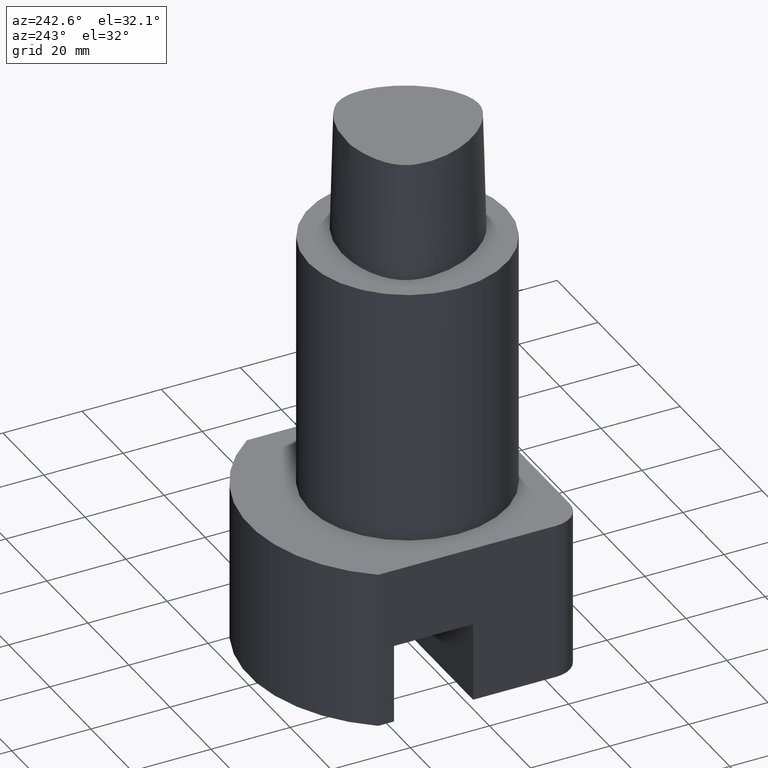
[diagram: clean part render]
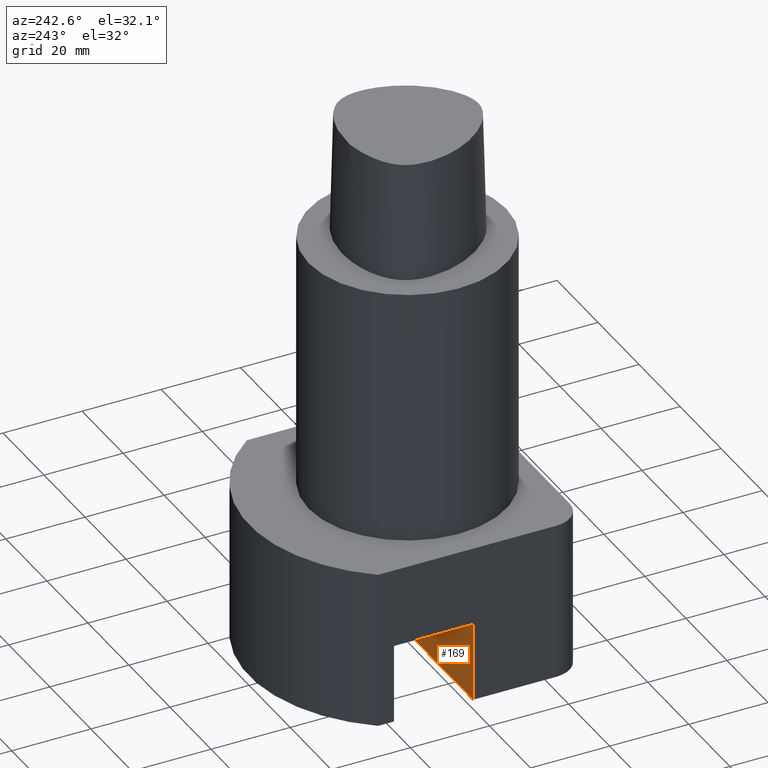
[diagram: same view with one face highlighted and labeled with its STEP entity id]
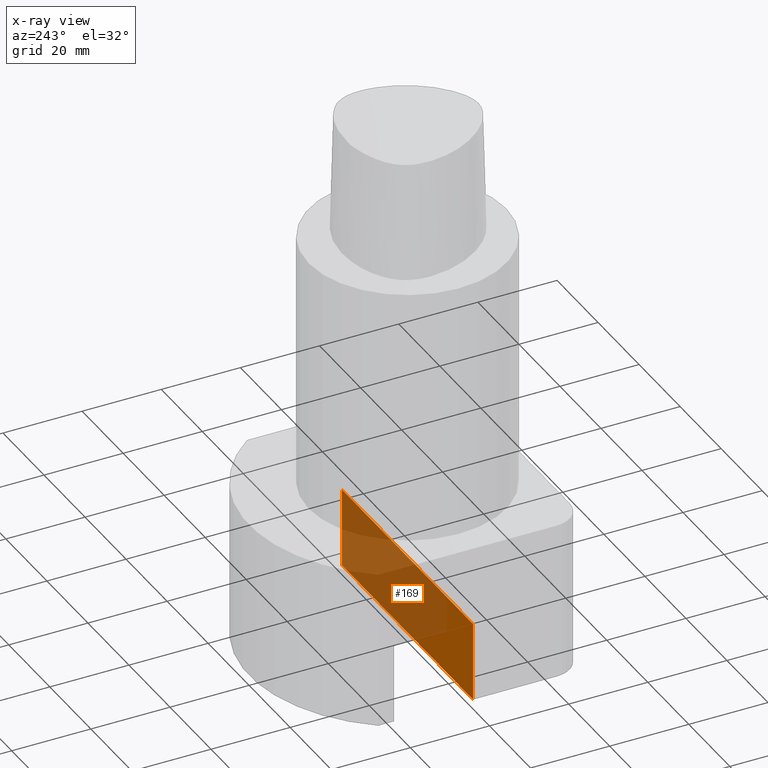
[diagram: x-ray of the same camera — body ghosted, the highlighted face saturated]
A machine part, auxiliary view. The second image highlights one B-rep face of the part: STEP entity #169.
The next image is the same camera in x-ray: the body ghosted, the highlighted face saturated — about 73% of this face is hidden behind the body in this view.
In plain terms, the highlighted planar face has unit normal (-0, -1, 0).
Its self-contained STEP definition (entity closure, byte-faithful):
#107=EDGE_CURVE('240[2]',#217,#261,#262,.T.);
#111=EDGE_CURVE('240[2]',#261,#268,#269,.T.);
#126=EDGE_CURVE('240[2]',#278,#217,#289,.T.);
#169=ADVANCED_FACE('240[2]',(#343),#344,.F.);
#188=EDGE_CURVE('240[2]',#268,#278,#367,.T.);
#217=VERTEX_POINT('',#389);
#261=VERTEX_POINT('',#543);
#262=LINE('',#544,#545);
#268=VERTEX_POINT('',#554);
#269=LINE('',#555,#556);
#278=VERTEX_POINT('',#569);
#289=LINE('',#588,#589);
#343=FACE_OUTER_BOUND('',#716,.T.);
#344=PLANE('',#717);
#367=LINE('',#1136,#1137);
#389=CARTESIAN_POINT('',(32.0,-1.23077003314309E-014,-105.0));
#543=CARTESIAN_POINT('',(32.0,-1.10830535322835E-014,-85.0));
#544=CARTESIAN_POINT('',(32.0,-1.4236519040088E-014,-136.5));
#545=VECTOR('',#1201,1.0);
#554=CARTESIAN_POINT('',(-32.0,6.73555739531043E-016,-85.0));
#555=CARTESIAN_POINT('',(32.0,-1.10830535322835E-014,-85.0));
#556=VECTOR('',#1203,1.0);
#569=CARTESIAN_POINT('',(-32.0,-5.51091059616309E-016,-105.0));
#588=CARTESIAN_POINT('',(14.9748737341529,-9.18023537344853E-015,-105.0));
#589=VECTOR('',#1217,1.0);
#716=EDGE_LOOP('',(#1281,#1282,#1283,#1284));
#717=AXIS2_PLACEMENT_3D('',#1285,#1286,#1287);
#1136=CARTESIAN_POINT('',(-32.0,-2.47990976827339E-015,-136.5));
#1137=VECTOR('',#1316,1.0);
#1201=DIRECTION('',(-1.22464679914735E-016,6.12323399573677E-017,1.0));
#1203=DIRECTION('',(-1.0,1.83697019872103E-016,-1.22464679914735E-016));
#1217=DIRECTION('',(1.0,-1.83697019872103E-016,1.22464679914735E-016));
#1281=ORIENTED_EDGE('',*,*,#126,.F.);
#1282=ORIENTED_EDGE('',*,*,#188,.F.);
#1283=ORIENTED_EDGE('',*,*,#111,.F.);
#1284=ORIENTED_EDGE('',*,*,#107,.F.);
#1285=CARTESIAN_POINT('',(1.7021352546875E-014,-1.02870331128378E-014,-168.0));
#1286=DIRECTION('',(-1.83697019872103E-016,-1.0,6.12323399573677E-017));
#1287=DIRECTION('',(-1.0,1.83697019872103E-016,0.0));
#1316=DIRECTION('',(1.22464679914735E-016,-6.12323399573677E-017,-1.0));